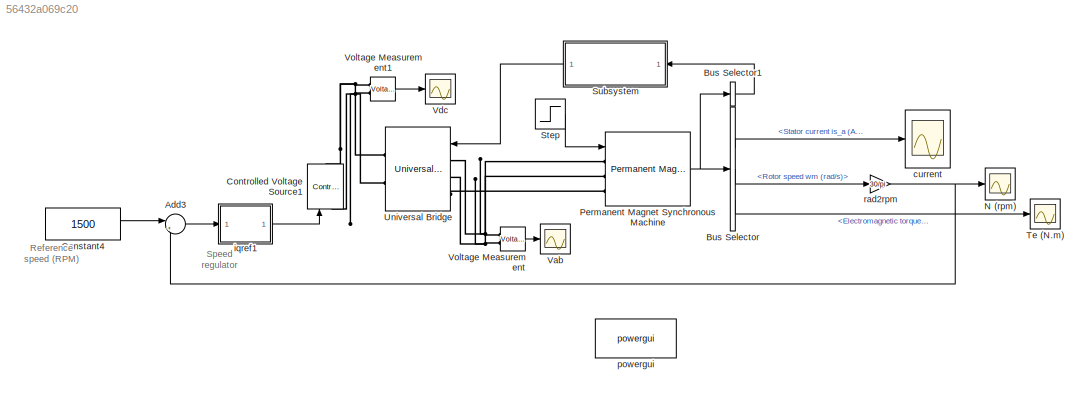
MODEL slx_56432a069c20
KIND model
CONFIG AbsTol = auto
CONFIG EnableMultiTasking = on
CONFIG FixedStep = auto
CONFIG MaxStep = auto
CONFIG MinStep = auto
CONFIG RelTol = 1e-6
CONFIG SampleTimeConstraint = Unconstrained
CONFIG SolverName = ode45
CONFIG StartTime = 0.0
CONFIG StopTime = 0.5
WORKSPACE source: mxarray member
WORKSPACE N: object (value not decoded)
WORKSPACE ia: object (value not decoded)
BLOCK [Sum] Add3
  Inputs = |+-
  Ports = [2, 1]
BLOCK [BusSelector] Bus Selector
  OutputSignals = Stator current is_a (A),Rotor speed wm (rad/s),Electromagnetic torque Te (N*m)
  Ports = [1, 3]
BLOCK [BusSelector] Bus Selector1
  OutputAsBus = on
  OutputSignals = Hall effect signal h_a,Hall effect signal h_b,Hall effect signal h_c
  Ports = [1, 1]
BLOCK [Constant] Constant4
  Value = 1500
BLOCK [Reference] Controlled Voltage Source1  REF=powerlib/Electrical
Sources/Controlled Voltage Source
  NameLocation = right
  Ports = [1, 0, 0, 0, 0, 1, 1]
  SourceBlock = powerlib/Electrical\nSources/Controlled Voltage Source
  SourceProductBaseCode = PS
  SourceType = Controlled Voltage Source
BLOCK [Scope] N (rpm)
  Floating = off
  NameLocation = top
  NumInputPorts = 1
  Ports = [1]
  ScopeSpecificationString = Simulink.scopes.TimeScopeBlockCfg('CurrentConfiguration', extmgr.ConfigurationSet(extmgr.Configuration('Core','General UI',true),extmgr.Configuration('Core','Source UI',true),extmgr.Configuration('Sources','WiredSimulink',true,'DataLogging',true,'DataLoggingVariableName','N','DataLoggingSaveFormat','StructureWithTime','DataLoggingDecimation','1','DataLoggingDecimateData',true),extmgr.Configuration...<+1688ch>
BLOCK [Reference] Permanent Magnet Synchronous Machine  REF=powerlib/Machines/Permanent Magnet
Synchronous Machine
  Ports = [1, 1, 0, 0, 0, 3]
  SourceBlock = powerlib/Machines/Permanent Magnet\nSynchronous Machine
  SourceProductBaseCode = PS
  SourceType = Permanent Magnet Synchronous Machine
BLOCK [Step] Step
  SampleTime = 0
  Time = .1
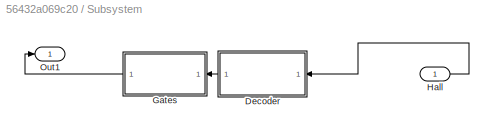
BLOCK [SubSystem] Subsystem
  NameLocation = top
  Ports = [1, 1]
  RequestExecContextInheritance = off
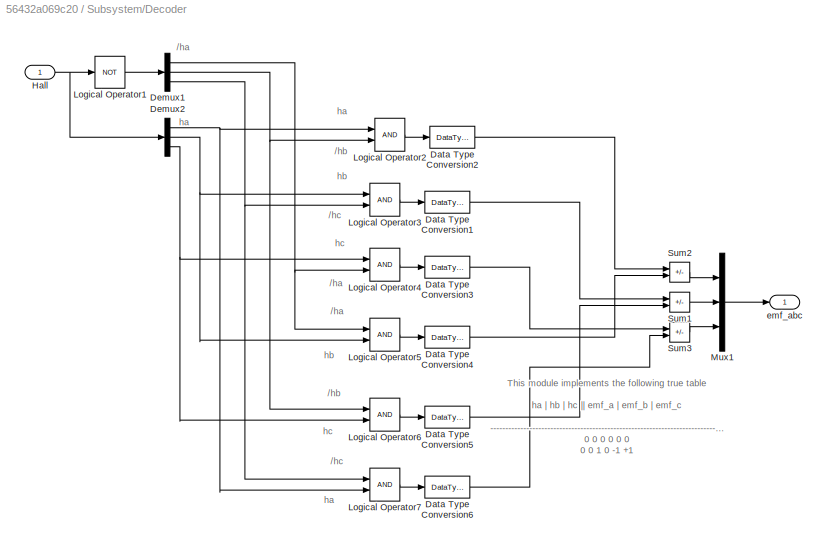
BLOCK [SubSystem] Subsystem/Decoder
  NameLocation = top
  Ports = [1, 1]
  RequestExecContextInheritance = off
BLOCK [DataTypeConversion] Subsystem/Decoder/Data Type Conversion1
  RndMeth = Floor
  SaturateOnIntegerOverflow = off
BLOCK [DataTypeConversion] Subsystem/Decoder/Data Type Conversion2
  RndMeth = Floor
  SaturateOnIntegerOverflow = off
BLOCK [DataTypeConversion] Subsystem/Decoder/Data Type Conversion3
  RndMeth = Floor
  SaturateOnIntegerOverflow = off
BLOCK [DataTypeConversion] Subsystem/Decoder/Data Type Conversion4
  RndMeth = Floor
  SaturateOnIntegerOverflow = off
BLOCK [DataTypeConversion] Subsystem/Decoder/Data Type Conversion5
  RndMeth = Floor
  SaturateOnIntegerOverflow = off
BLOCK [DataTypeConversion] Subsystem/Decoder/Data Type Conversion6
  RndMeth = Floor
  SaturateOnIntegerOverflow = off
BLOCK [Demux] Subsystem/Decoder/Demux1
  Outputs = 3
  Ports = [1, 3]
BLOCK [Demux] Subsystem/Decoder/Demux2
  Outputs = 3
  Ports = [1, 3]
BLOCK [Inport] Subsystem/Decoder/Hall 
BLOCK [Logic] Subsystem/Decoder/Logical Operator1
  AllPortsSameDT = off
  Operator = NOT
  OutDataTypeStr = boolean
  Ports = [1, 1]
BLOCK [Logic] Subsystem/Decoder/Logical Operator2
  AllPortsSameDT = off
  OutDataTypeStr = boolean
  Ports = [2, 1]
BLOCK [Logic] Subsystem/Decoder/Logical Operator3
  AllPortsSameDT = off
  OutDataTypeStr = boolean
  Ports = [2, 1]
BLOCK [Logic] Subsystem/Decoder/Logical Operator4
  AllPortsSameDT = off
  OutDataTypeStr = boolean
  Ports = [2, 1]
BLOCK [Logic] Subsystem/Decoder/Logical Operator5
  AllPortsSameDT = off
  OutDataTypeStr = boolean
  Ports = [2, 1]
BLOCK [Logic] Subsystem/Decoder/Logical Operator6
  AllPortsSameDT = off
  OutDataTypeStr = boolean
  Ports = [2, 1]
BLOCK [Logic] Subsystem/Decoder/Logical Operator7
  AllPortsSameDT = off
  OutDataTypeStr = boolean
  Ports = [2, 1]
BLOCK [Mux] Subsystem/Decoder/Mux1
  DisplayOption = bar
  Inputs = 3
  Ports = [3, 1]
BLOCK [Sum] Subsystem/Decoder/Sum1
  IconShape = rectangular
  Inputs = +-
  OutDataTypeStr = double
  Ports = [2, 1]
BLOCK [Sum] Subsystem/Decoder/Sum2
  IconShape = rectangular
  Inputs = +-
  OutDataTypeStr = double
  Ports = [2, 1]
BLOCK [Sum] Subsystem/Decoder/Sum3
  IconShape = rectangular
  Inputs = +-
  OutDataTypeStr = double
  Ports = [2, 1]
BLOCK [Outport] Subsystem/Decoder/emf_abc
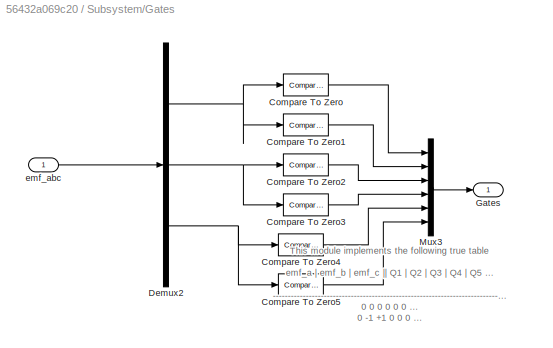
BLOCK [SubSystem] Subsystem/Gates
  NameLocation = top
  Ports = [1, 1]
  RequestExecContextInheritance = off
BLOCK [Reference] Subsystem/Gates/Compare To Zero  REF=simulink/Logic and Bit
Operations/Compare
To Zero
  Ports = [1, 1]
  SourceBlock = simulink/Logic and Bit\nOperations/Compare\nTo Zero
  SourceProductBaseCode = SL
  SourceType = Compare To Zero
BLOCK [Reference] Subsystem/Gates/Compare To Zero1  REF=simulink/Logic and Bit
Operations/Compare
To Zero
  Ports = [1, 1]
  SourceBlock = simulink/Logic and Bit\nOperations/Compare\nTo Zero
  SourceProductBaseCode = SL
  SourceType = Compare To Zero
BLOCK [Reference] Subsystem/Gates/Compare To Zero2  REF=simulink/Logic and Bit
Operations/Compare
To Zero
  Ports = [1, 1]
  SourceBlock = simulink/Logic and Bit\nOperations/Compare\nTo Zero
  SourceProductBaseCode = SL
  SourceType = Compare To Zero
BLOCK [Reference] Subsystem/Gates/Compare To Zero3  REF=simulink/Logic and Bit
Operations/Compare
To Zero
  Ports = [1, 1]
  SourceBlock = simulink/Logic and Bit\nOperations/Compare\nTo Zero
  SourceProductBaseCode = SL
  SourceType = Compare To Zero
BLOCK [Reference] Subsystem/Gates/Compare To Zero4  REF=simulink/Logic and Bit
Operations/Compare
To Zero
  Ports = [1, 1]
  SourceBlock = simulink/Logic and Bit\nOperations/Compare\nTo Zero
  SourceProductBaseCode = SL
  SourceType = Compare To Zero
BLOCK [Reference] Subsystem/Gates/Compare To Zero5  REF=simulink/Logic and Bit
Operations/Compare
To Zero
  Ports = [1, 1]
  SourceBlock = simulink/Logic and Bit\nOperations/Compare\nTo Zero
  SourceProductBaseCode = SL
  SourceType = Compare To Zero
BLOCK [Demux] Subsystem/Gates/Demux2
  Outputs = 3
  Ports = [1, 3]
BLOCK [Outport] Subsystem/Gates/Gates
BLOCK [Mux] Subsystem/Gates/Mux3
  DisplayOption = bar
  Inputs = 6
  Ports = [6, 1]
BLOCK [Inport] Subsystem/Gates/emf_abc 
BLOCK [Inport] Subsystem/Hall 
BLOCK [Outport] Subsystem/Out1
BLOCK [Scope] Te (N.m)
  Floating = off
  NumInputPorts = 1
  Ports = [1]
  ScopeSpecificationString = Simulink.scopes.TimeScopeBlockCfg('CurrentConfiguration', extmgr.ConfigurationSet(extmgr.Configuration('Core','General UI',true),extmgr.Configuration('Core','Source UI',true),extmgr.Configuration('Sources','WiredSimulink',true,'DataLoggingVariableName','Te1','DataLoggingSaveFormat','StructureWithTime','DataLoggingDecimation','1','DataLoggingDecimateData',true),extmgr.Configuration('Visuals','Time ...<+1664ch>
BLOCK [Reference] Universal Bridge  REF=powerlib/Power
Electronics/Universal Bridge
  Ports = [1, 0, 0, 0, 0, 3, 2]
  SourceBlock = powerlib/Power\nElectronics/Universal Bridge
  SourceProductBaseCode = PS
  SourceType = Universal Bridge
BLOCK [Scope] Vab
  Floating = off
  NumInputPorts = 1
  Ports = [1]
  ScopeSpecificationString = Simulink.scopes.TimeScopeBlockCfg('CurrentConfiguration', extmgr.ConfigurationSet(extmgr.Configuration('Core','General UI',true),extmgr.Configuration('Core','Source UI',true),extmgr.Configuration('Sources','WiredSimulink',true,'DataLoggingSaveFormat','Structure','DataLoggingDecimation','1','DataLoggingDecimateData',true),extmgr.Configuration('Visuals','Time Domain',true,'SerializedDisplays',{struc...<+1627ch>
BLOCK [Scope] Vdc
  Floating = off
  NumInputPorts = 1
  Ports = [1]
  ScopeSpecificationString = Simulink.scopes.TimeScopeBlockCfg('CurrentConfiguration', extmgr.ConfigurationSet(extmgr.Configuration('Core','General UI',true),extmgr.Configuration('Core','Source UI',true),extmgr.Configuration('Sources','WiredSimulink',true,'DataLoggingVariableName','ScopeData1','DataLoggingSaveFormat','Structure','DataLoggingDecimation','1','DataLoggingDecimateData',true),extmgr.Configuration('Visuals','Time D...<+1675ch>
BLOCK [Reference] Voltage Measurement  REF=powerlib/Measurements/Voltage Measurement
  Ports = [0, 1, 0, 0, 0, 2]
  SourceBlock = powerlib/Measurements/Voltage Measurement
  SourceProductBaseCode = PS
  SourceType = Voltage Measurement
BLOCK [Reference] Voltage Measurement1  REF=powerlib/Measurements/Voltage Measurement
  Ports = [0, 1, 0, 0, 0, 2]
  SourceBlock = powerlib/Measurements/Voltage Measurement
  SourceProductBaseCode = PS
  SourceType = Voltage Measurement
BLOCK [Scope] current
  Floating = off
  NameLocation = top
  NumInputPorts = 1
  Ports = [1]
  ScopeSpecificationString = Simulink.scopes.TimeScopeBlockCfg('CurrentConfiguration', extmgr.ConfigurationSet(extmgr.Configuration('Core','General UI',true),extmgr.Configuration('Core','Source UI',true),extmgr.Configuration('Sources','WiredSimulink',true,'DataLogging',true,'DataLoggingVariableName','ia','DataLoggingSaveFormat','StructureWithTime','DataLoggingDecimation','1','DataLoggingDecimateData',true),extmgr.Configuratio...<+1707ch>
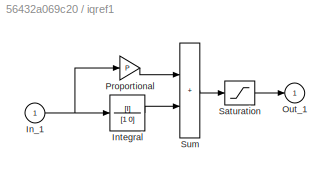
BLOCK [SubSystem] iqref1
  Ports = [1, 1]
  RequestExecContextInheritance = off
BLOCK [Inport] iqref1/In_1
BLOCK [TransferFcn] iqref1/Integral
  Denominator = [1 0]
  Numerator = [I]
BLOCK [Outport] iqref1/Out_1
  InitialOutput = 0
BLOCK [Gain] iqref1/Proportional
  Gain = P
  NameLocation = top
  OutDataTypeStr = Inherit: Same as input
  ParamDataTypeStr = Inherit: Same as input
  SaturateOnIntegerOverflow = on
BLOCK [Saturate] iqref1/Saturation
  LowerLimit = min
  UpperLimit = max
BLOCK [Sum] iqref1/Sum
  IconShape = rectangular
  InputSameDT = on
  OutDataTypeStr = Inherit: Same as first input
  Ports = [2, 1]
  SaturateOnIntegerOverflow = on
BLOCK [Reference] powergui  REF=powerlib/powergui
  Ports = []
  Priority = 1
  SourceBlock = powerlib/powergui
  SourceProductBaseCode = PS
  SourceType = PSB option menu block
BLOCK [Gain] rad2rpm
  Gain = 30/pi
ANNOTATION (root): Reference speed (RPM)
ANNOTATION (root): Speed regulator
ANNOTATION Subsystem/Decoder: /ha
ANNOTATION Subsystem/Decoder: /hb
ANNOTATION Subsystem/Decoder: /hc
ANNOTATION Subsystem/Decoder: This module implements the following true table ha | hb | hc || emf_a | emf_b | emf_c -------------------------------------------------------------------------------- 0 0 0 0 0 0 0 0 1 0 -1 +1 0 1 0 -1 +1 0 0 1 1 -1 0 +1 1 0 0 +1 0 -1 1 0 1 +1 -1 0 1 1 0 0 +1 -1 1 1 1 0 0 0
ANNOTATION Subsystem/Decoder: ha
ANNOTATION Subsystem/Decoder: hb
ANNOTATION Subsystem/Decoder: hc
ANNOTATION Subsystem/Gates: This module implements the following true table emf_a | emf_b | emf_c || Q1 | Q2 | Q3 | Q4 | Q5 | Q6 ------------------------------------------------------------------------------------------------------------------ 0 0 0 0 0 0 0 0 0 0 -1 +1 0 0 0 1 1 0 -1 +1 0 0 1 1 0 0 0 -1 0 +1 0 1 0 0 1 0 +1 0 -1 1 0 0 0 0 1 +1 -1 0 1 0 0 1 0 0 0 +1 -1 0 0 1 0 0 1 0 0 0 0 0 0 0 0 0
LINE Add3:1 -> iqref1:1
LINE Bus Selector1:1 -> Subsystem:1
LINE Bus Selector:1 -> current:1
LINE Bus Selector:2 -> rad2rpm:1
LINE Bus Selector:3 -> Te (N.m):1
LINE Constant4:1 -> Add3:1
NET Permanent Magnet Synchronous Machine:1 -> Bus Selector1:1, Bus Selector:1
LINE Step:1 -> Permanent Magnet Synchronous Machine:1
LINE Subsystem/Decoder/Data Type Conversion1:1 -> Subsystem/Decoder/Sum1:1
LINE Subsystem/Decoder/Data Type Conversion2:1 -> Subsystem/Decoder/Sum2:1
LINE Subsystem/Decoder/Data Type Conversion3:1 -> Subsystem/Decoder/Sum3:1
LINE Subsystem/Decoder/Data Type Conversion4:1 -> Subsystem/Decoder/Sum2:2
LINE Subsystem/Decoder/Data Type Conversion5:1 -> Subsystem/Decoder/Sum1:2
LINE Subsystem/Decoder/Data Type Conversion6:1 -> Subsystem/Decoder/Sum3:2
NET Subsystem/Decoder/Demux1:1 -> Subsystem/Decoder/Logical Operator4:2, Subsystem/Decoder/Logical Operator5:1
NET Subsystem/Decoder/Demux1:2 -> Subsystem/Decoder/Logical Operator2:2, Subsystem/Decoder/Logical Operator6:1
NET Subsystem/Decoder/Demux1:3 -> Subsystem/Decoder/Logical Operator3:2, Subsystem/Decoder/Logical Operator7:1
NET Subsystem/Decoder/Demux2:1 -> Subsystem/Decoder/Logical Operator2:1, Subsystem/Decoder/Logical Operator7:2
NET Subsystem/Decoder/Demux2:2 -> Subsystem/Decoder/Logical Operator3:1, Subsystem/Decoder/Logical Operator5:2
NET Subsystem/Decoder/Demux2:3 -> Subsystem/Decoder/Logical Operator4:1, Subsystem/Decoder/Logical Operator6:2
NET Subsystem/Decoder/Hall :1 -> Subsystem/Decoder/Demux2:1, Subsystem/Decoder/Logical Operator1:1
LINE Subsystem/Decoder/Logical Operator1:1 -> Subsystem/Decoder/Demux1:1
LINE Subsystem/Decoder/Logical Operator2:1 -> Subsystem/Decoder/Data Type Conversion2:1
LINE Subsystem/Decoder/Logical Operator3:1 -> Subsystem/Decoder/Data Type Conversion1:1
LINE Subsystem/Decoder/Logical Operator4:1 -> Subsystem/Decoder/Data Type Conversion3:1
LINE Subsystem/Decoder/Logical Operator5:1 -> Subsystem/Decoder/Data Type Conversion4:1
LINE Subsystem/Decoder/Logical Operator6:1 -> Subsystem/Decoder/Data Type Conversion5:1
LINE Subsystem/Decoder/Logical Operator7:1 -> Subsystem/Decoder/Data Type Conversion6:1
LINE Subsystem/Decoder/Mux1:1 -> Subsystem/Decoder/emf_abc:1
LINE Subsystem/Decoder/Sum1:1 -> Subsystem/Decoder/Mux1:2
LINE Subsystem/Decoder/Sum2:1 -> Subsystem/Decoder/Mux1:1
LINE Subsystem/Decoder/Sum3:1 -> Subsystem/Decoder/Mux1:3
LINE Subsystem/Decoder:1 -> Subsystem/Gates:1
LINE Subsystem/Gates/Compare To Zero1:1 -> Subsystem/Gates/Mux3:2
LINE Subsystem/Gates/Compare To Zero2:1 -> Subsystem/Gates/Mux3:3
LINE Subsystem/Gates/Compare To Zero3:1 -> Subsystem/Gates/Mux3:4
LINE Subsystem/Gates/Compare To Zero4:1 -> Subsystem/Gates/Mux3:5
LINE Subsystem/Gates/Compare To Zero5:1 -> Subsystem/Gates/Mux3:6
LINE Subsystem/Gates/Compare To Zero:1 -> Subsystem/Gates/Mux3:1
NET Subsystem/Gates/Demux2:1 -> Subsystem/Gates/Compare To Zero1:1, Subsystem/Gates/Compare To Zero:1
NET Subsystem/Gates/Demux2:2 -> Subsystem/Gates/Compare To Zero2:1, Subsystem/Gates/Compare To Zero3:1
NET Subsystem/Gates/Demux2:3 -> Subsystem/Gates/Compare To Zero4:1, Subsystem/Gates/Compare To Zero5:1
LINE Subsystem/Gates/Mux3:1 -> Subsystem/Gates/Gates:1
LINE Subsystem/Gates/emf_abc :1 -> Subsystem/Gates/Demux2:1
LINE Subsystem/Gates:1 -> Subsystem/Out1:1
LINE Subsystem/Hall :1 -> Subsystem/Decoder:1
LINE Subsystem:1 -> Universal Bridge:1
LINE Voltage Measurement1:1 -> Vdc:1
LINE Voltage Measurement:1 -> Vab:1
NET iqref1/In_1:1 -> iqref1/Integral:1, iqref1/Proportional:1
LINE iqref1/Integral:1 -> iqref1/Sum:2
LINE iqref1/Proportional:1 -> iqref1/Sum:1
LINE iqref1/Saturation:1 -> iqref1/Out_1:1
LINE iqref1/Sum:1 -> iqref1/Saturation:1
LINE iqref1:1 -> Controlled Voltage Source1:1
NET rad2rpm:1 -> Add3:2, N (rpm):1
PNET net1: Controlled Voltage Source1:LConn1 -- Universal Bridge:RConn2 -- Voltage Measurement1:LConn2
PNET net2: Controlled Voltage Source1:RConn1 -- Universal Bridge:RConn1 -- Voltage Measurement1:LConn1
PNET net3: Permanent Magnet Synchronous Machine:LConn1 -- Universal Bridge:LConn1 -- Voltage Measurement:LConn1
PNET net4: Permanent Magnet Synchronous Machine:LConn2 -- Universal Bridge:LConn2 -- Voltage Measurement:LConn2
PLINE Permanent Magnet Synchronous Machine:LConn3 -- Universal Bridge:LConn3
note: NET lines group one-source signal fan-out (src -> all destinations, sorted); 1:1 wires keep LINE; PNET lines group multi-terminal physical nets as a canonical sorted terminal list (undirected conserving connections); 2-terminal nets keep the pairwise PLINE form
